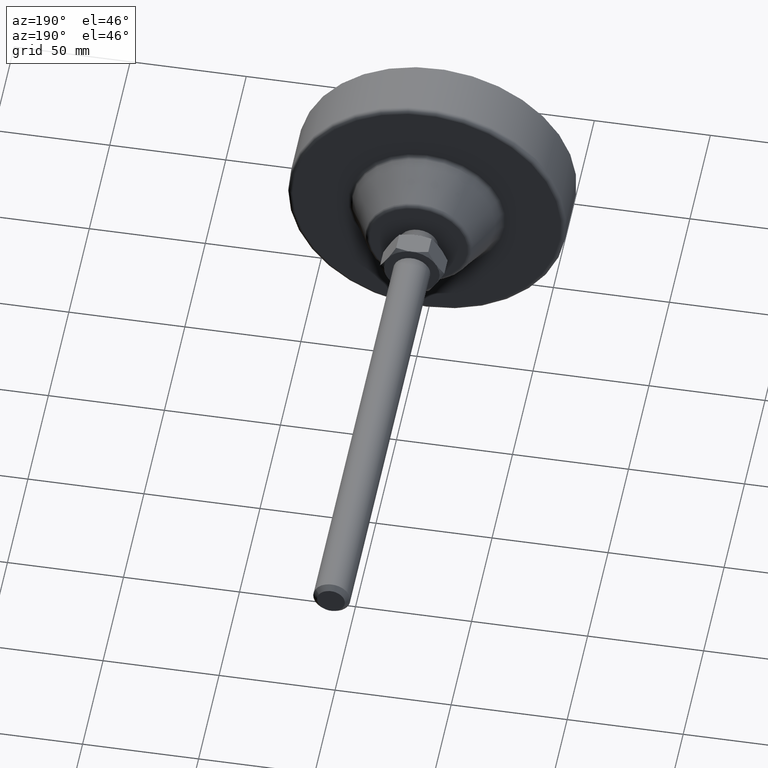
[diagram: clean part render]
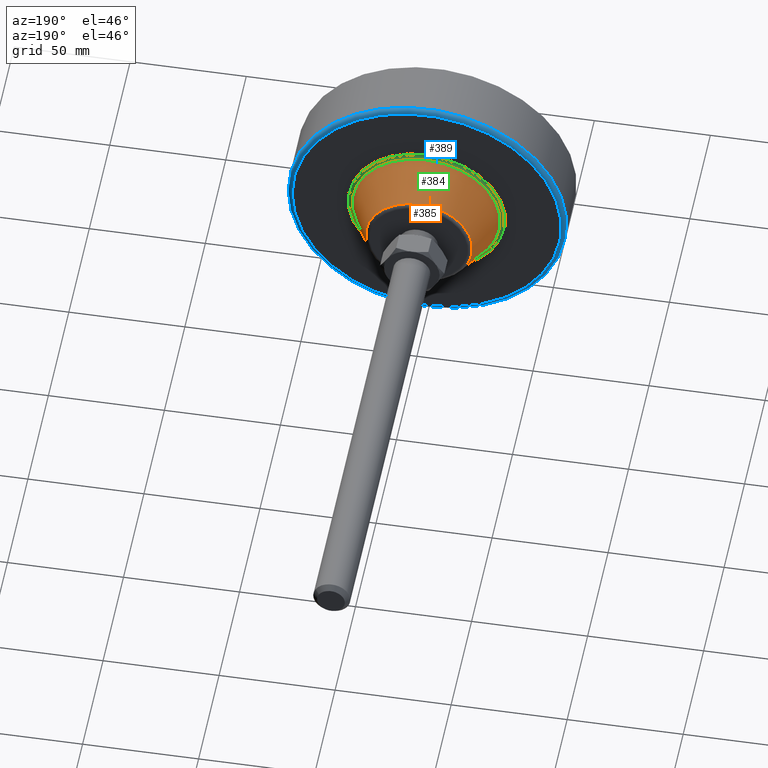
[diagram: same view with three faces highlighted in distinct colors, each labeled with its STEP entity id]
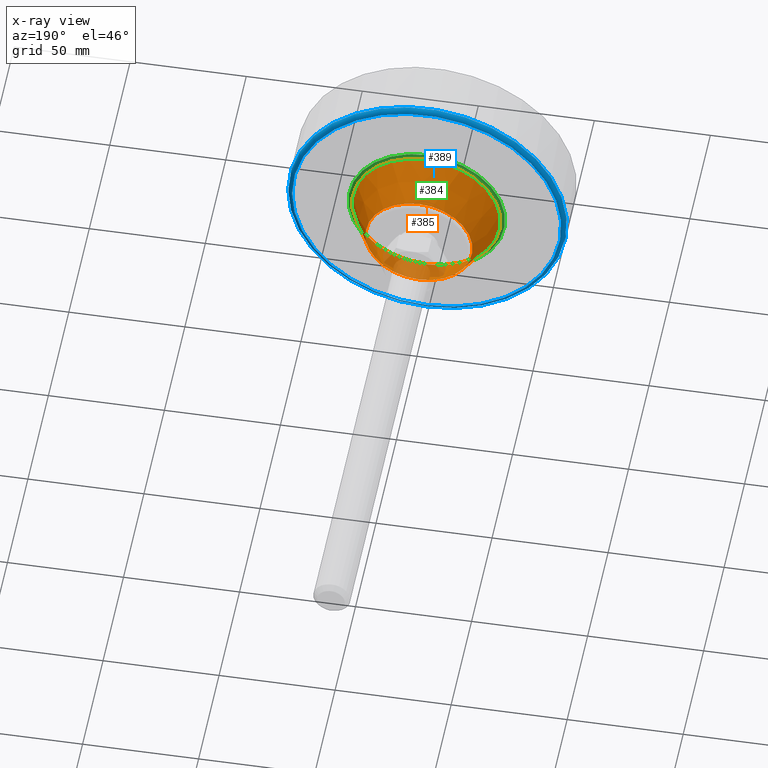
[diagram: x-ray of the same camera — body ghosted, the three highlighted faces saturated]
A machine part, auxiliary view with three faces highlighted in distinct colors.
The next image is the same camera in x-ray (body ghosted, the three faces saturated) — at least one of them is partly hidden behind the body in this view.
Their STEP definitions:

[orange] entity #385 — the highlighted conical surface has half-angle 26.565 deg.
#64=LINE('',#662,#77);
#77=VECTOR('',#544,27.5);
#90=CONICAL_SURFACE('',#476,27.5,0.463647609000806);
#95=FACE_OUTER_BOUND('',#119,.T.);
#119=EDGE_LOOP('',(#274,#275,#276,#277,#278,#279));
#146=CIRCLE('',#472,31.9472135955);
#147=CIRCLE('',#473,31.9472135955);
#150=CIRCLE('',#477,23.0527864045);
#151=CIRCLE('',#478,23.0527864045);
#173=VERTEX_POINT('',#650);
#174=VERTEX_POINT('',#651);
#176=VERTEX_POINT('',#658);
#177=VERTEX_POINT('',#659);
#213=EDGE_CURVE('',#173,#174,#146,.T.);
#214=EDGE_CURVE('',#174,#173,#147,.T.);
#217=EDGE_CURVE('',#176,#177,#150,.T.);
#218=EDGE_CURVE('',#177,#176,#151,.T.);
#219=EDGE_CURVE('',#177,#174,#64,.T.);
#274=ORIENTED_EDGE('',*,*,#217,.F.);
#275=ORIENTED_EDGE('',*,*,#218,.F.);
#276=ORIENTED_EDGE('',*,*,#219,.T.);
#277=ORIENTED_EDGE('',*,*,#213,.F.);
#278=ORIENTED_EDGE('',*,*,#214,.F.);
#279=ORIENTED_EDGE('',*,*,#219,.F.);
#385=ADVANCED_FACE('',(#95),#90,.T.);
#472=AXIS2_PLACEMENT_3D('',#652,#530,#531);
#473=AXIS2_PLACEMENT_3D('',#653,#532,#533);
#476=AXIS2_PLACEMENT_3D('',#657,#538,#539);
#477=AXIS2_PLACEMENT_3D('',#660,#540,#541);
#478=AXIS2_PLACEMENT_3D('',#661,#542,#543);
#530=DIRECTION('center_axis',(0.,-1.,0.));
#531=DIRECTION('ref_axis',(-1.22464679914735E-16,0.,-1.));
#532=DIRECTION('center_axis',(0.,-1.,0.));
#533=DIRECTION('ref_axis',(-1.22464679914735E-16,0.,-1.));
#538=DIRECTION('center_axis',(0.,-1.,0.));
#539=DIRECTION('ref_axis',(0.,0.,1.));
#540=DIRECTION('center_axis',(0.,1.,0.));
#541=DIRECTION('ref_axis',(-3.06161699786838E-17,0.,-1.));
#542=DIRECTION('center_axis',(0.,1.,0.));
#543=DIRECTION('ref_axis',(-3.06161699786838E-17,0.,-1.));
#544=DIRECTION('',(-5.47678698264203E-17,-0.894427190999916,-0.447213595499958));
#650=CARTESIAN_POINT('',(4.93038065763132E-31,27.1055728090001,31.9472135955));
#651=CARTESIAN_POINT('',(-3.91240528714058E-15,27.1055728090001,-31.9472135955));
#652=CARTESIAN_POINT('Origin',(0.,27.1055728090001,0.));
#653=CARTESIAN_POINT('Origin',(0.,27.1055728090001,0.));
#657=CARTESIAN_POINT('Origin',(0.,36.,0.));
#658=CARTESIAN_POINT('',(1.41157605408493E-15,44.8944271909999,23.0527864045));
#659=CARTESIAN_POINT('',(-2.82315210816986E-15,44.8944271909999,-23.0527864045));
#660=CARTESIAN_POINT('Origin',(-2.11736408112739E-15,44.8944271909999,0.));
#661=CARTESIAN_POINT('Origin',(-2.11736408112739E-15,44.8944271909999,0.));
#662=CARTESIAN_POINT('',(-3.36777869765522E-15,36.,-27.5));

[blue] entity #389 — the highlighted toroidal blend (fillet) surface has major radius 58 mm and minor (blend) radius 2 mm.
#99=FACE_OUTER_BOUND('',#125,.T.);
#125=EDGE_LOOP('',(#292,#293,#294,#295,#296,#297));
#152=CIRCLE('',#480,58.);
#153=CIRCLE('',#481,58.);
#158=CIRCLE('',#489,2.);
#159=CIRCLE('',#490,60.);
#160=CIRCLE('',#491,60.);
#178=VERTEX_POINT('',#664);
#179=VERTEX_POINT('',#665);
#183=VERTEX_POINT('',#678);
#184=VERTEX_POINT('',#680);
#220=EDGE_CURVE('',#178,#179,#152,.T.);
#221=EDGE_CURVE('',#179,#178,#153,.T.);
#226=EDGE_CURVE('',#179,#183,#158,.T.);
#227=EDGE_CURVE('',#183,#184,#159,.T.);
#228=EDGE_CURVE('',#184,#183,#160,.T.);
#292=ORIENTED_EDGE('',*,*,#220,.T.);
#293=ORIENTED_EDGE('',*,*,#226,.T.);
#294=ORIENTED_EDGE('',*,*,#227,.T.);
#295=ORIENTED_EDGE('',*,*,#228,.T.);
#296=ORIENTED_EDGE('',*,*,#226,.F.);
#297=ORIENTED_EDGE('',*,*,#221,.T.);
#383=TOROIDAL_SURFACE('',#488,58.,2.);
#389=ADVANCED_FACE('',(#99),#383,.T.);
#480=AXIS2_PLACEMENT_3D('',#666,#547,#548);
#481=AXIS2_PLACEMENT_3D('',#667,#549,#550);
#488=AXIS2_PLACEMENT_3D('',#677,#563,#564);
#489=AXIS2_PLACEMENT_3D('',#679,#565,#566);
#490=AXIS2_PLACEMENT_3D('',#681,#567,#568);
#491=AXIS2_PLACEMENT_3D('',#682,#569,#570);
#547=DIRECTION('center_axis',(0.,-1.,0.));
#548=DIRECTION('ref_axis',(-1.,0.,0.));
#549=DIRECTION('center_axis',(0.,-1.,0.));
#550=DIRECTION('ref_axis',(-1.,0.,0.));
#563=DIRECTION('center_axis',(0.,1.,0.));
#564=DIRECTION('ref_axis',(0.,0.,1.));
#565=DIRECTION('center_axis',(-1.,0.,1.22464679914735E-16));
#566=DIRECTION('ref_axis',(-1.22464679914735E-16,0.,-1.));
#567=DIRECTION('center_axis',(0.,1.,0.));
#568=DIRECTION('ref_axis',(-1.,0.,0.));
#569=DIRECTION('center_axis',(0.,1.,0.));
#570=DIRECTION('ref_axis',(-1.,0.,0.));
#664=CARTESIAN_POINT('',(58.,26.,7.10295143505465E-15));
#665=CARTESIAN_POINT('',(-7.10295143505465E-15,26.,-58.));
#666=CARTESIAN_POINT('Origin',(0.,26.,0.));
#667=CARTESIAN_POINT('Origin',(0.,26.,0.));
#677=CARTESIAN_POINT('Origin',(0.,24.,0.));
#678=CARTESIAN_POINT('',(-7.34788079488412E-15,24.,-60.));
#679=CARTESIAN_POINT('Origin',(-7.10295143505465E-15,24.,-58.));
#680=CARTESIAN_POINT('',(60.,24.,-7.34788079488412E-15));
#681=CARTESIAN_POINT('Origin',(0.,24.,0.));
#682=CARTESIAN_POINT('Origin',(0.,24.,0.));

[green] entity #384 — the highlighted toroidal blend (fillet) surface has major radius 33.7361 mm and minor (blend) radius 2 mm.
#94=FACE_OUTER_BOUND('',#118,.T.);
#118=EDGE_LOOP('',(#269,#270,#271,#272,#273));
#146=CIRCLE('',#472,31.9472135955);
#147=CIRCLE('',#473,31.9472135955);
#148=CIRCLE('',#474,2.);
#149=CIRCLE('',#475,33.7360679774998);
#173=VERTEX_POINT('',#650);
#174=VERTEX_POINT('',#651);
#175=VERTEX_POINT('',#654);
#213=EDGE_CURVE('',#173,#174,#146,.T.);
#214=EDGE_CURVE('',#174,#173,#147,.T.);
#215=EDGE_CURVE('',#173,#175,#148,.T.);
#216=EDGE_CURVE('',#175,#175,#149,.T.);
#269=ORIENTED_EDGE('',*,*,#213,.T.);
#270=ORIENTED_EDGE('',*,*,#214,.T.);
#271=ORIENTED_EDGE('',*,*,#215,.T.);
#272=ORIENTED_EDGE('',*,*,#216,.T.);
#273=ORIENTED_EDGE('',*,*,#215,.F.);
#381=TOROIDAL_SURFACE('',#471,33.7360679774998,2.);
#384=ADVANCED_FACE('',(#94),#381,.F.);
#471=AXIS2_PLACEMENT_3D('',#649,#528,#529);
#472=AXIS2_PLACEMENT_3D('',#652,#530,#531);
#473=AXIS2_PLACEMENT_3D('',#653,#532,#533);
#474=AXIS2_PLACEMENT_3D('',#655,#534,#535);
#475=AXIS2_PLACEMENT_3D('',#656,#536,#537);
#528=DIRECTION('center_axis',(0.,-1.,0.));
#529=DIRECTION('ref_axis',(0.,0.,-1.));
#530=DIRECTION('center_axis',(0.,-1.,0.));
#531=DIRECTION('ref_axis',(-1.22464679914735E-16,0.,-1.));
#532=DIRECTION('center_axis',(0.,-1.,0.));
#533=DIRECTION('ref_axis',(-1.22464679914735E-16,0.,-1.));
#534=DIRECTION('center_axis',(-1.,0.,-1.22464679914735E-16));
#535=DIRECTION('ref_axis',(-1.22464679914735E-16,0.,1.));
#536=DIRECTION('center_axis',(0.,1.,0.));
#537=DIRECTION('ref_axis',(-1.22464679914735E-16,0.,-1.));
#649=CARTESIAN_POINT('Origin',(0.,28.,0.));
#650=CARTESIAN_POINT('',(4.93038065763132E-31,27.1055728090001,31.9472135955));
#651=CARTESIAN_POINT('',(-3.91240528714058E-15,27.1055728090001,-31.9472135955));
#652=CARTESIAN_POINT('Origin',(0.,27.1055728090001,0.));
#653=CARTESIAN_POINT('Origin',(0.,27.1055728090001,0.));
#654=CARTESIAN_POINT('',(8.26295353289253E-15,26.,33.7360679774998));
#655=CARTESIAN_POINT('Origin',(-4.13147676644626E-15,28.,33.7360679774998));
#656=CARTESIAN_POINT('Origin',(0.,26.,0.));